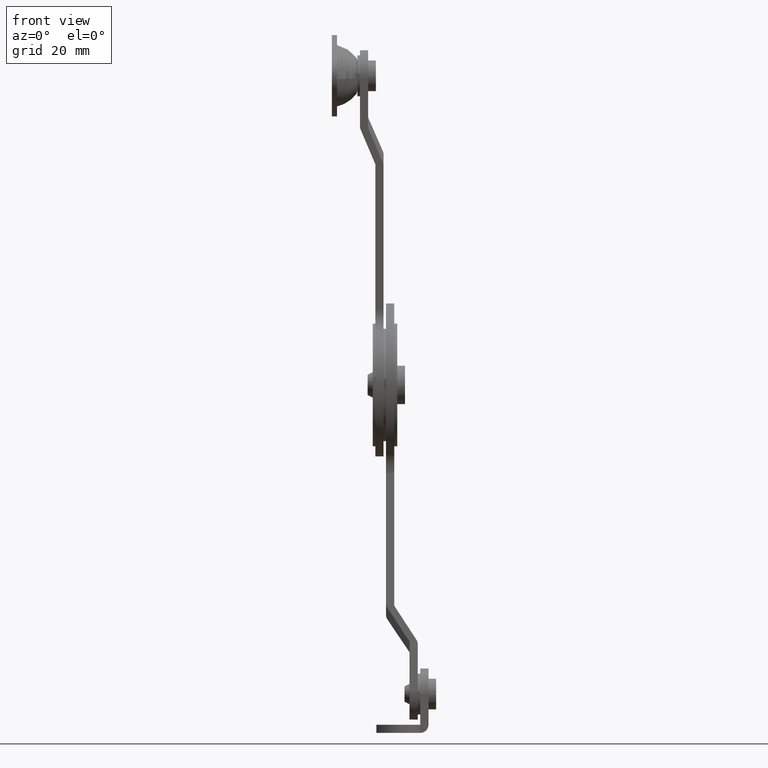
[diagram: clean part render]
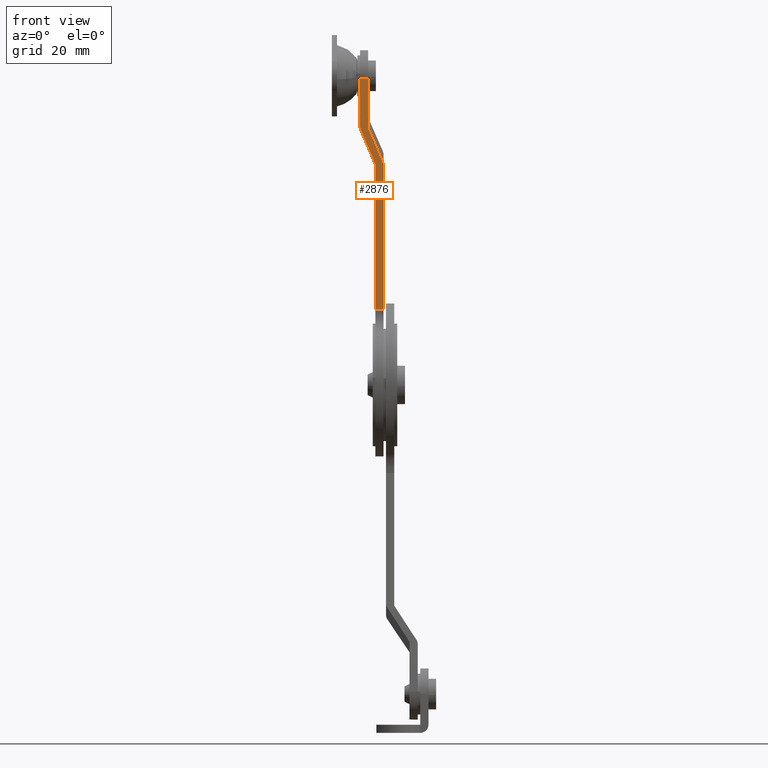
[diagram: same view with one face highlighted and labeled with its STEP entity id]
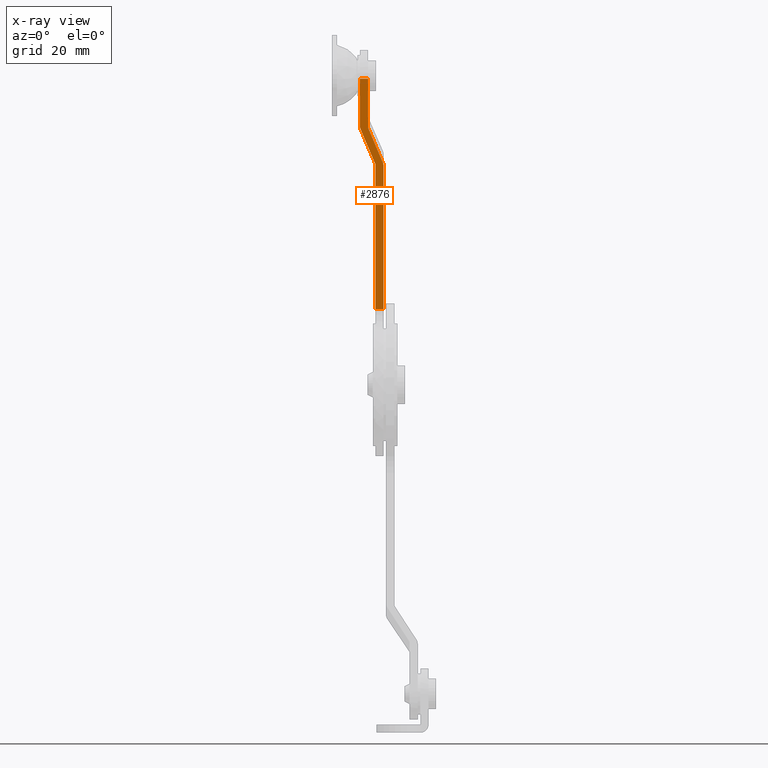
[diagram: x-ray of the same camera — body ghosted, the highlighted face saturated]
A machine part, front view. The second image highlights one B-rep face of the part: STEP entity #2876.
The next image is the same camera in x-ray: the body ghosted, the highlighted face saturated — about 0% of this face is hidden behind the body in this view.
In plain terms, the highlighted face is a freeform B-spline surface patch.
Its self-contained STEP definition (entity closure, byte-faithful):
#2377=CARTESIAN_POINT('',(5.625915208842949,-3.818821705934365,49.972495489978002));
#2378=VERTEX_POINT('',#2377);
#2384=CARTESIAN_POINT('',(5.500000000000000,-3.890240525839340,50.591652868104397));
#2385=VERTEX_POINT('',#2384);
#2386=CARTESIAN_POINT('',(5.500000000000001,-3.890240525839340,50.591652868104397));
#2387=CARTESIAN_POINT('',(5.500000000000001,-3.853068450372629,50.269393765866219));
#2388=CARTESIAN_POINT('',(5.625915208842949,-3.818821705934365,49.972495489977952));
#2396=(BOUNDED_CURVE()B_SPLINE_CURVE(2,(#2386,#2387,#2388),.UNSPECIFIED.,.F.,.U.)CURVE()GEOMETRIC_REPRESENTATION_ITEM()QUASI_UNIFORM_CURVE()RATIONAL_B_SPLINE_CURVE((1.0,0.980128306517366,1.0))REPRESENTATION_ITEM(''));
#2397=EDGE_CURVE('',#2385,#2378,#2396,.T.);
#2438=CARTESIAN_POINT('',(9.974083791157080,-3.071367701159205,43.492527570003197));
#2439=VERTEX_POINT('',#2438);
#2445=CARTESIAN_POINT('',(10.099999000000020,-2.999948881254220,42.873370191876703));
#2446=VERTEX_POINT('',#2445);
#2447=CARTESIAN_POINT('',(10.099999000000000,-2.999948881254220,42.873370191876703));
#2448=CARTESIAN_POINT('',(10.099999000000000,-3.037120956720936,43.195629294114909));
#2449=CARTESIAN_POINT('',(9.974083791157025,-3.071367701159202,43.492527570003197));
#2457=(BOUNDED_CURVE()B_SPLINE_CURVE(2,(#2447,#2448,#2449),.UNSPECIFIED.,.F.,.U.)CURVE()GEOMETRIC_REPRESENTATION_ITEM()QUASI_UNIFORM_CURVE()RATIONAL_B_SPLINE_CURVE((1.0,0.980128306517347,1.0))REPRESENTATION_ITEM(''));
#2458=EDGE_CURVE('',#2446,#2439,#2457,.T.);
#2473=CARTESIAN_POINT('',(8.499998999999999,-3.037120956720985,43.195629294114802));
#2474=VERTEX_POINT('',#2473);
#2475=CARTESIAN_POINT('',(8.499998999999999,-3.037120956720985,43.195629294114802));
#2476=CARTESIAN_POINT('',(5.625915208842949,-3.818821705934365,49.972495489978002));
#2477=QUASI_UNIFORM_CURVE('',1,(#2475,#2476),.UNSPECIFIED.,.F.,.U.);
#2478=EDGE_CURVE('',#2474,#2378,#2477,.T.);
#2501=CARTESIAN_POINT('',(8.499998999999999,0.232317553530429,14.851602066470599));
#2502=VERTEX_POINT('',#2501);
#2503=CARTESIAN_POINT('',(8.499998999999999,0.232317553530429,14.851602066470599));
#2504=CARTESIAN_POINT('',(8.499998999999999,-3.037120956720985,43.195629294114802));
#2505=QUASI_UNIFORM_CURVE('',1,(#2503,#2504),.UNSPECIFIED.,.F.,.U.);
#2506=EDGE_CURVE('',#2502,#2474,#2505,.T.);
#2569=CARTESIAN_POINT('',(7.100000000000001,-3.853068450372600,50.269393765866099));
#2570=VERTEX_POINT('',#2569);
#2571=CARTESIAN_POINT('',(9.974083791157080,-3.071367701159205,43.492527570003197));
#2572=CARTESIAN_POINT('',(7.100000000000001,-3.853068450372600,50.269393765866099));
#2573=QUASI_UNIFORM_CURVE('',1,(#2571,#2572),.UNSPECIFIED.,.F.,.U.);
#2574=EDGE_CURVE('',#2439,#2570,#2573,.T.);
#2605=CARTESIAN_POINT('',(10.099999000000020,0.232317553530436,14.851602066470599));
#2606=VERTEX_POINT('',#2605);
#2607=CARTESIAN_POINT('',(10.099999000000020,-2.999948881254220,42.873370191876703));
#2608=CARTESIAN_POINT('',(10.099999000000020,0.232317553530436,14.851602066470599));
#2609=QUASI_UNIFORM_CURVE('',1,(#2607,#2608),.UNSPECIFIED.,.F.,.U.);
#2610=EDGE_CURVE('',#2446,#2606,#2609,.T.);
#2678=CARTESIAN_POINT('',(7.100000000000001,-4.967137552743680,59.927684936312602));
#2679=VERTEX_POINT('',#2678);
#2704=CARTESIAN_POINT('',(5.500000000000000,-4.967137000000000,59.927684999999897));
#2705=VERTEX_POINT('',#2704);
#2721=CARTESIAN_POINT('',(7.100000000000001,-4.967137552743680,59.927684936312602));
#2722=CARTESIAN_POINT('',(5.500000000000000,-4.967137000000000,59.927684999999897));
#2723=QUASI_UNIFORM_CURVE('',1,(#2721,#2722),.UNSPECIFIED.,.F.,.U.);
#2724=EDGE_CURVE('',#2679,#2705,#2723,.T.);
#2740=CARTESIAN_POINT('',(5.500000000000000,-4.967137000000000,59.927684999999897));
#2741=CARTESIAN_POINT('',(5.500000000000000,-3.890240525839340,50.591652868104397));
#2742=QUASI_UNIFORM_CURVE('',1,(#2740,#2741),.UNSPECIFIED.,.F.,.U.);
#2743=EDGE_CURVE('',#2705,#2385,#2742,.T.);
#2844=CARTESIAN_POINT('',(10.099999000000020,0.232317553530436,14.851602066470599));
#2845=CARTESIAN_POINT('',(8.499998999999999,0.232317553530429,14.851602066470599));
#2846=QUASI_UNIFORM_CURVE('',1,(#2844,#2845),.UNSPECIFIED.,.F.,.U.);
#2847=EDGE_CURVE('',#2606,#2502,#2846,.T.);
#2855=CARTESIAN_POINT('',(5.270230042431263,0.492030347210875,12.600051388161500));
#2856=CARTESIAN_POINT('',(5.270230042431263,-5.226849886662008,62.179236484402047));
#2857=CARTESIAN_POINT('',(10.329769409967909,0.492030347210875,12.600051388161500));
#2858=CARTESIAN_POINT('',(10.329769409967909,-5.226849886662008,62.179236484402047));
#2859=B_SPLINE_SURFACE_WITH_KNOTS('',1,1,((#2855,#2857),(#2856,#2858)),.UNSPECIFIED.,.F.,.F.,.U.,(2,2),(2,2),(0.0,49.907927085150142),(0.0,5.059539367536652),.UNSPECIFIED.);
#2860=ORIENTED_EDGE('',*,*,#2610,.F.);
#2861=ORIENTED_EDGE('',*,*,#2458,.T.);
#2862=ORIENTED_EDGE('',*,*,#2574,.T.);
#2863=CARTESIAN_POINT('',(7.100000000000001,-3.853068450372600,50.269393765866099));
#2864=CARTESIAN_POINT('',(7.100000000000001,-4.967137552743680,59.927684936312602));
#2865=QUASI_UNIFORM_CURVE('',1,(#2863,#2864),.UNSPECIFIED.,.F.,.U.);
#2866=EDGE_CURVE('',#2570,#2679,#2865,.T.);
#2867=ORIENTED_EDGE('',*,*,#2866,.T.);
#2868=ORIENTED_EDGE('',*,*,#2724,.T.);
#2869=ORIENTED_EDGE('',*,*,#2743,.T.);
#2870=ORIENTED_EDGE('',*,*,#2397,.T.);
#2871=ORIENTED_EDGE('',*,*,#2478,.F.);
#2872=ORIENTED_EDGE('',*,*,#2506,.F.);
#2873=ORIENTED_EDGE('',*,*,#2847,.F.);
#2874=EDGE_LOOP('',(#2860,#2861,#2862,#2867,#2868,#2869,#2870,#2871,#2872,#2873));
#2875=FACE_OUTER_BOUND('',#2874,.T.);
#2876=ADVANCED_FACE('',(#2875),#2859,.F.);